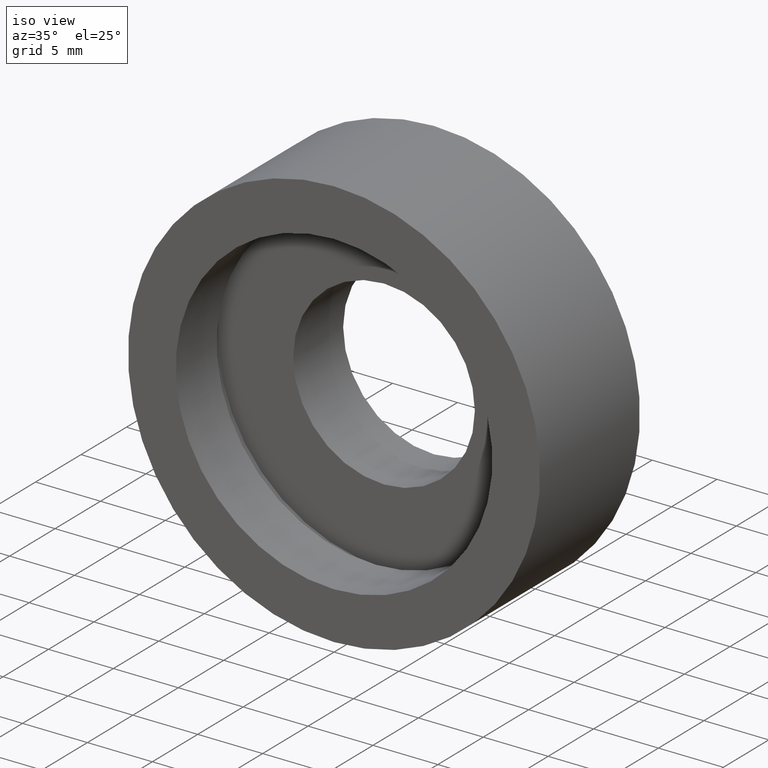
[diagram: clean part render]
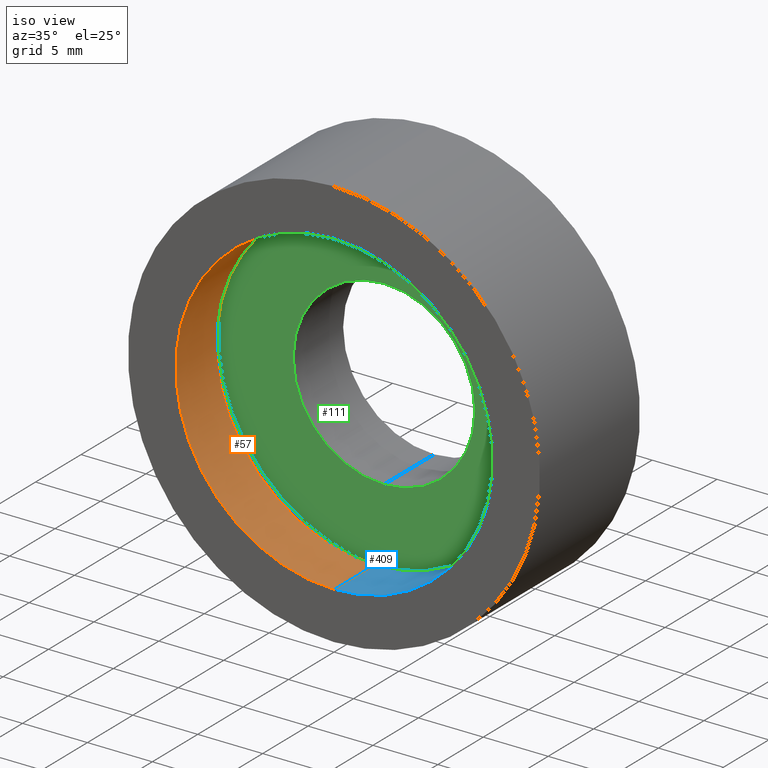
[diagram: same view with three faces highlighted in distinct colors, each labeled with its STEP entity id]
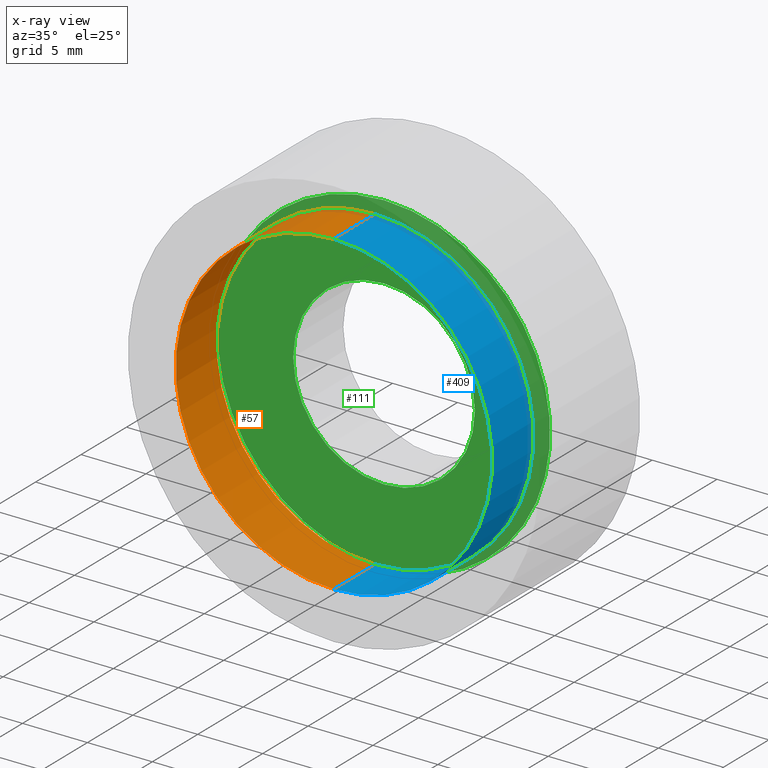
[diagram: x-ray of the same camera — body ghosted, the three highlighted faces saturated]
A machine part, iso view with three faces highlighted in distinct colors.
The next image is the same camera in x-ray (body ghosted, the three faces saturated) — at least one of them is partly hidden behind the body in this view.
Their STEP definitions:

[orange] entity #57 — the highlighted cylindrical surface (partial cylindrical patch) has radius 12.2 mm, axis along (-0, 1, -0).
#14 = CARTESIAN_POINT ( 'NONE',  ( 1.494069094959771600E-015, 60.02082041425541100, -12.20000000000000600 ) ) ;
#32 = AXIS2_PLACEMENT_3D ( 'NONE', #38, #133, #183 ) ;
#38 = CARTESIAN_POINT ( 'NONE',  ( 0.0000000000000000000, 60.02082041425541100, 0.0000000000000000000 ) ) ;
#45 = DIRECTION ( 'NONE',  ( -0.0000000000000000000, 1.000000000000000000, -0.0000000000000000000 ) ) ;
#54 = EDGE_CURVE ( 'NONE', #358, #259, #402, .T. ) ;
#57 = ADVANCED_FACE ( 'NONE', ( #317 ), #86, .F. ) ;
#60 = LINE ( 'NONE', #428, #397 ) ;
#69 = CARTESIAN_POINT ( 'NONE',  ( 0.0000000000000000000, 4.499999999999997300, 0.0000000000000000000 ) ) ;
#86 = CYLINDRICAL_SURFACE ( 'NONE', #32, 12.20000000000000600 ) ;
#87 = EDGE_LOOP ( 'NONE', ( #215, #253, #173, #105 ) ) ;
#103 = DIRECTION ( 'NONE',  ( -0.0000000000000000000, 1.000000000000000000, -0.0000000000000000000 ) ) ;
#105 = ORIENTED_EDGE ( 'NONE', *, *, #218, .F. ) ;
#121 = CARTESIAN_POINT ( 'NONE',  ( 1.494069094959771600E-015, 4.499999999999997300, -12.20000000000000600 ) ) ;
#133 = DIRECTION ( 'NONE',  ( -0.0000000000000000000, 1.000000000000000000, -0.0000000000000000000 ) ) ;
#139 = VERTEX_POINT ( 'NONE', #329 ) ;
#148 = AXIS2_PLACEMENT_3D ( 'NONE', #69, #365, #235 ) ;
#173 = ORIENTED_EDGE ( 'NONE', *, *, #207, .T. ) ;
#183 = DIRECTION ( 'NONE',  ( 0.0000000000000000000, 0.0000000000000000000, 1.000000000000000000 ) ) ;
#207 = EDGE_CURVE ( 'NONE', #259, #139, #284, .T. ) ;
#215 = ORIENTED_EDGE ( 'NONE', *, *, #232, .F. ) ;
#218 = EDGE_CURVE ( 'NONE', #222, #139, #60, .T. ) ;
#222 = VERTEX_POINT ( 'NONE', #388 ) ;
#232 = EDGE_CURVE ( 'NONE', #358, #222, #368, .T. ) ;
#235 = DIRECTION ( 'NONE',  ( 0.0000000000000000000, 0.0000000000000000000, 1.000000000000000000 ) ) ;
#253 = ORIENTED_EDGE ( 'NONE', *, *, #54, .T. ) ;
#259 = VERTEX_POINT ( 'NONE', #121 ) ;
#284 = CIRCLE ( 'NONE', #148, 12.20000000000000600 ) ;
#305 = AXIS2_PLACEMENT_3D ( 'NONE', #331, #324, #319 ) ;
#317 = FACE_OUTER_BOUND ( 'NONE', #87, .T. ) ;
#319 = DIRECTION ( 'NONE',  ( 0.0000000000000000000, 0.0000000000000000000, 1.000000000000000000 ) ) ;
#324 = DIRECTION ( 'NONE',  ( -0.0000000000000000000, 1.000000000000000000, -0.0000000000000000000 ) ) ;
#329 = CARTESIAN_POINT ( 'NONE',  ( 0.0000000000000000000, 4.499999999999997300, 12.20000000000000600 ) ) ;
#331 = CARTESIAN_POINT ( 'NONE',  ( 0.0000000000000000000, 0.0000000000000000000, 0.0000000000000000000 ) ) ;
#347 = CARTESIAN_POINT ( 'NONE',  ( 1.494069094959771600E-015, 0.0000000000000000000, -12.20000000000000600 ) ) ;
#358 = VERTEX_POINT ( 'NONE', #347 ) ;
#365 = DIRECTION ( 'NONE',  ( -0.0000000000000000000, 1.000000000000000000, -0.0000000000000000000 ) ) ;
#368 = CIRCLE ( 'NONE', #305, 12.20000000000000600 ) ;
#388 = CARTESIAN_POINT ( 'NONE',  ( 0.0000000000000000000, 0.0000000000000000000, 12.20000000000000600 ) ) ;
#397 = VECTOR ( 'NONE', #45, 1000.000000000000000 ) ;
#402 = LINE ( 'NONE', #14, #422 ) ;
#422 = VECTOR ( 'NONE', #103, 1000.000000000000000 ) ;
#428 = CARTESIAN_POINT ( 'NONE',  ( 0.0000000000000000000, 60.02082041425541100, 12.20000000000000600 ) ) ;

[blue] entity #409 — the highlighted cylindrical surface (partial cylindrical patch) has radius 12.2 mm, axis along (-0, 1, -0).
#14 = CARTESIAN_POINT ( 'NONE',  ( 1.494069094959771600E-015, 60.02082041425541100, -12.20000000000000600 ) ) ;
#16 = CARTESIAN_POINT ( 'NONE',  ( 0.0000000000000000000, 0.0000000000000000000, 0.0000000000000000000 ) ) ;
#21 = EDGE_LOOP ( 'NONE', ( #306, #74, #349, #65 ) ) ;
#36 = DIRECTION ( 'NONE',  ( -0.0000000000000000000, 1.000000000000000000, -0.0000000000000000000 ) ) ;
#45 = DIRECTION ( 'NONE',  ( -0.0000000000000000000, 1.000000000000000000, -0.0000000000000000000 ) ) ;
#54 = EDGE_CURVE ( 'NONE', #358, #259, #402, .T. ) ;
#55 = DIRECTION ( 'NONE',  ( 0.0000000000000000000, 0.0000000000000000000, 1.000000000000000000 ) ) ;
#60 = LINE ( 'NONE', #428, #397 ) ;
#65 = ORIENTED_EDGE ( 'NONE', *, *, #246, .T. ) ;
#74 = ORIENTED_EDGE ( 'NONE', *, *, #251, .F. ) ;
#103 = DIRECTION ( 'NONE',  ( -0.0000000000000000000, 1.000000000000000000, -0.0000000000000000000 ) ) ;
#121 = CARTESIAN_POINT ( 'NONE',  ( 1.494069094959771600E-015, 4.499999999999997300, -12.20000000000000600 ) ) ;
#132 = AXIS2_PLACEMENT_3D ( 'NONE', #16, #36, #55 ) ;
#139 = VERTEX_POINT ( 'NONE', #329 ) ;
#153 = DIRECTION ( 'NONE',  ( -0.0000000000000000000, 1.000000000000000000, -0.0000000000000000000 ) ) ;
#155 = CARTESIAN_POINT ( 'NONE',  ( 0.0000000000000000000, 60.02082041425541100, 0.0000000000000000000 ) ) ;
#218 = EDGE_CURVE ( 'NONE', #222, #139, #60, .T. ) ;
#222 = VERTEX_POINT ( 'NONE', #388 ) ;
#246 = EDGE_CURVE ( 'NONE', #139, #259, #340, .T. ) ;
#251 = EDGE_CURVE ( 'NONE', #222, #358, #277, .T. ) ;
#259 = VERTEX_POINT ( 'NONE', #121 ) ;
#277 = CIRCLE ( 'NONE', #132, 12.20000000000000600 ) ;
#306 = ORIENTED_EDGE ( 'NONE', *, *, #54, .F. ) ;
#316 = DIRECTION ( 'NONE',  ( 0.0000000000000000000, 0.0000000000000000000, 1.000000000000000000 ) ) ;
#329 = CARTESIAN_POINT ( 'NONE',  ( 0.0000000000000000000, 4.499999999999997300, 12.20000000000000600 ) ) ;
#337 = DIRECTION ( 'NONE',  ( 0.0000000000000000000, 0.0000000000000000000, 1.000000000000000000 ) ) ;
#340 = CIRCLE ( 'NONE', #387, 12.20000000000000600 ) ;
#347 = CARTESIAN_POINT ( 'NONE',  ( 1.494069094959771600E-015, 0.0000000000000000000, -12.20000000000000600 ) ) ;
#349 = ORIENTED_EDGE ( 'NONE', *, *, #218, .T. ) ;
#356 = FACE_OUTER_BOUND ( 'NONE', #21, .T. ) ;
#358 = VERTEX_POINT ( 'NONE', #347 ) ;
#363 = AXIS2_PLACEMENT_3D ( 'NONE', #155, #153, #316 ) ;
#387 = AXIS2_PLACEMENT_3D ( 'NONE', #433, #434, #337 ) ;
#388 = CARTESIAN_POINT ( 'NONE',  ( 0.0000000000000000000, 0.0000000000000000000, 12.20000000000000600 ) ) ;
#397 = VECTOR ( 'NONE', #45, 1000.000000000000000 ) ;
#402 = LINE ( 'NONE', #14, #422 ) ;
#409 = ADVANCED_FACE ( 'NONE', ( #356 ), #427, .F. ) ;
#422 = VECTOR ( 'NONE', #103, 1000.000000000000000 ) ;
#427 = CYLINDRICAL_SURFACE ( 'NONE', #363, 12.20000000000000600 ) ;
#428 = CARTESIAN_POINT ( 'NONE',  ( 0.0000000000000000000, 60.02082041425541100, 12.20000000000000600 ) ) ;
#433 = CARTESIAN_POINT ( 'NONE',  ( 0.0000000000000000000, 4.499999999999997300, 0.0000000000000000000 ) ) ;
#434 = DIRECTION ( 'NONE',  ( -0.0000000000000000000, 1.000000000000000000, -0.0000000000000000000 ) ) ;

[green] entity #111 — the highlighted planar face has unit normal (-0, 1, 0).
#5 = CARTESIAN_POINT ( 'NONE',  ( 1.567547902908613200E-015, 5.499999999999998200, -12.80000000000000800 ) ) ;
#17 = ORIENTED_EDGE ( 'NONE', *, *, #328, .T. ) ;
#29 = DIRECTION ( 'NONE',  ( -0.0000000000000000000, 1.000000000000000000, -0.0000000000000000000 ) ) ;
#30 = VERTEX_POINT ( 'NONE', #101 ) ;
#35 = AXIS2_PLACEMENT_3D ( 'NONE', #119, #29, #287 ) ;
#66 = ORIENTED_EDGE ( 'NONE', *, *, #314, .T. ) ;
#73 = FACE_OUTER_BOUND ( 'NONE', #76, .T. ) ;
#76 = EDGE_LOOP ( 'NONE', ( #240, #152 ) ) ;
#80 = DIRECTION ( 'NONE',  ( -0.0000000000000000000, 1.000000000000000000, 0.0000000000000000000 ) ) ;
#82 = DIRECTION ( 'NONE',  ( 0.0000000000000000000, 0.0000000000000000000, 1.000000000000000000 ) ) ;
#101 = CARTESIAN_POINT ( 'NONE',  ( 0.0000000000000000000, 5.499999999999998200, 12.80000000000000800 ) ) ;
#111 = ADVANCED_FACE ( 'NONE', ( #73, #403 ), #369, .F. ) ;
#115 = CIRCLE ( 'NONE', #348, 7.000000000000006200 ) ;
#119 = CARTESIAN_POINT ( 'NONE',  ( 0.0000000000000000000, 5.499999999999998200, 0.0000000000000000000 ) ) ;
#125 = DIRECTION ( 'NONE',  ( 0.0000000000000000000, 0.0000000000000000000, 1.000000000000000000 ) ) ;
#152 = ORIENTED_EDGE ( 'NONE', *, *, #382, .F. ) ;
#174 = CIRCLE ( 'NONE', #35, 12.80000000000000800 ) ;
#176 = CARTESIAN_POINT ( 'NONE',  ( 0.0000000000000000000, 5.499999999999998200, 0.0000000000000000000 ) ) ;
#179 = CIRCLE ( 'NONE', #200, 7.000000000000006200 ) ;
#196 = CARTESIAN_POINT ( 'NONE',  ( 0.0000000000000000000, 5.499999999999998200, 0.0000000000000000000 ) ) ;
#199 = DIRECTION ( 'NONE',  ( -0.0000000000000000000, 1.000000000000000000, -0.0000000000000000000 ) ) ;
#200 = AXIS2_PLACEMENT_3D ( 'NONE', #298, #199, #366 ) ;
#240 = ORIENTED_EDGE ( 'NONE', *, *, #336, .F. ) ;
#258 = DIRECTION ( 'NONE',  ( -0.0000000000000000000, 1.000000000000000000, -0.0000000000000000000 ) ) ;
#263 = CARTESIAN_POINT ( 'NONE',  ( 12.80000000000000800, 5.499999999999999100, 0.0000000000000000000 ) ) ;
#275 = DIRECTION ( 'NONE',  ( -0.0000000000000000000, 1.000000000000000000, -0.0000000000000000000 ) ) ;
#278 = VERTEX_POINT ( 'NONE', #341 ) ;
#287 = DIRECTION ( 'NONE',  ( 0.0000000000000000000, 0.0000000000000000000, 1.000000000000000000 ) ) ;
#296 = VERTEX_POINT ( 'NONE', #5 ) ;
#298 = CARTESIAN_POINT ( 'NONE',  ( 0.0000000000000000000, 5.499999999999998200, 0.0000000000000000000 ) ) ;
#303 = AXIS2_PLACEMENT_3D ( 'NONE', #196, #258, #413 ) ;
#310 = EDGE_LOOP ( 'NONE', ( #17, #66 ) ) ;
#313 = CARTESIAN_POINT ( 'NONE',  ( 0.0000000000000000000, 5.499999999999998200, 7.000000000000006200 ) ) ;
#314 = EDGE_CURVE ( 'NONE', #278, #386, #115, .T. ) ;
#328 = EDGE_CURVE ( 'NONE', #386, #278, #179, .T. ) ;
#336 = EDGE_CURVE ( 'NONE', #30, #296, #362, .T. ) ;
#341 = CARTESIAN_POINT ( 'NONE',  ( 8.572527594031480100E-016, 5.499999999999998200, -7.000000000000006200 ) ) ;
#348 = AXIS2_PLACEMENT_3D ( 'NONE', #176, #275, #125 ) ;
#362 = CIRCLE ( 'NONE', #303, 12.80000000000000800 ) ;
#366 = DIRECTION ( 'NONE',  ( 0.0000000000000000000, 0.0000000000000000000, 1.000000000000000000 ) ) ;
#369 = PLANE ( 'NONE',  #425 ) ;
#382 = EDGE_CURVE ( 'NONE', #296, #30, #174, .T. ) ;
#386 = VERTEX_POINT ( 'NONE', #313 ) ;
#403 = FACE_BOUND ( 'NONE', #310, .T. ) ;
#413 = DIRECTION ( 'NONE',  ( 0.0000000000000000000, 0.0000000000000000000, 1.000000000000000000 ) ) ;
#425 = AXIS2_PLACEMENT_3D ( 'NONE', #263, #80, #82 ) ;